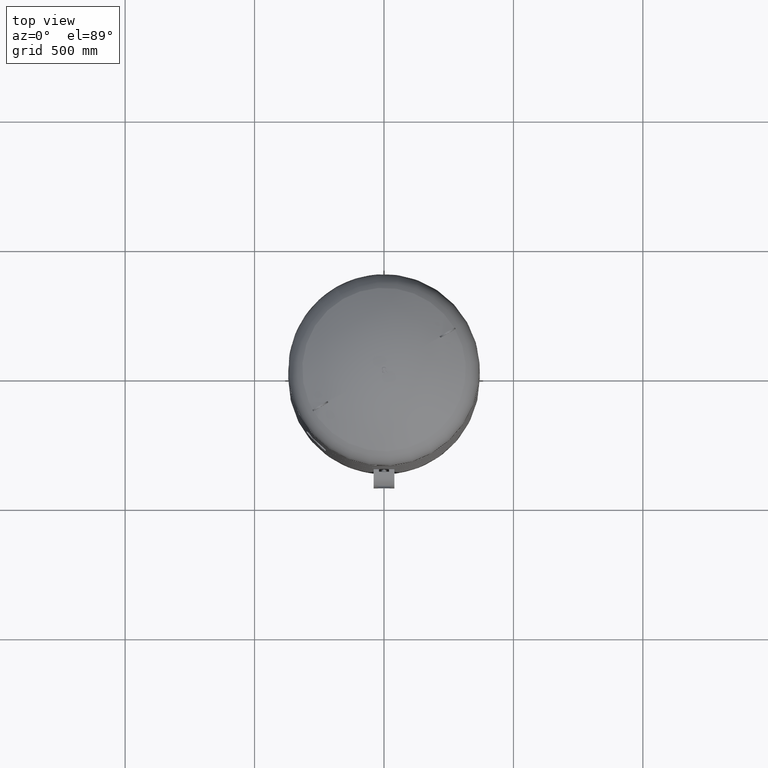
[diagram: clean part render]
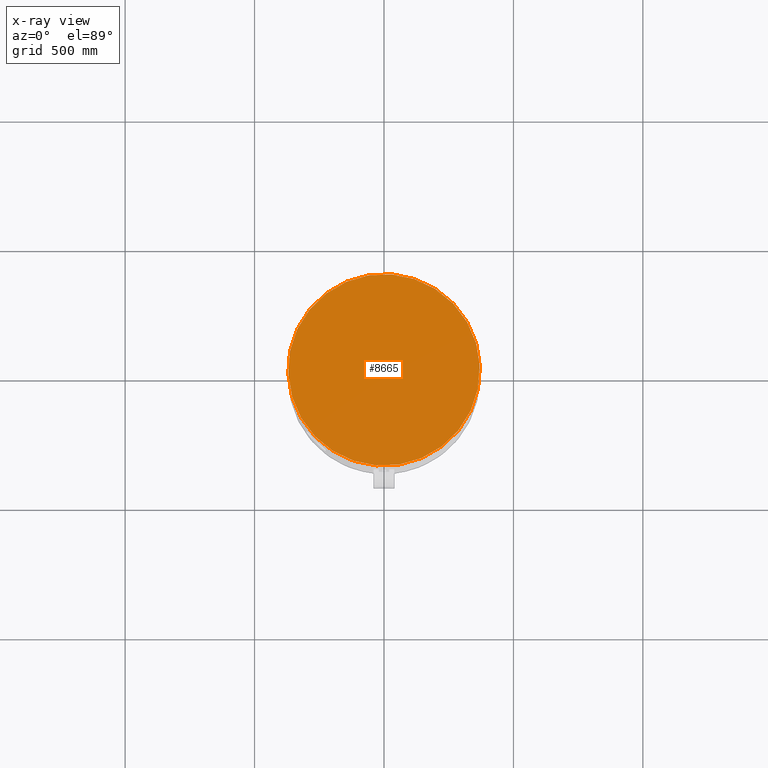
[diagram: x-ray — body ghosted, one internal face saturated and labeled with its STEP entity id]
A machine part, top view, then the same camera in x-ray: the body is ghosted and one INTERNAL B-rep face — a face not visible from any outside direction — is saturated and labeled: STEP entity #8665.
In plain terms, the highlighted planar face has unit normal (0, 0, -1).
Its self-contained STEP definition (entity closure, byte-faithful):
#7933=CARTESIAN_POINT('',(320.429399400242350,184.999999999999970,2384.0));
#7934=VERTEX_POINT('',#7933);
#7943=CARTESIAN_POINT('',(-320.429399400242350,-184.999999999999970,2384.0));
#7944=VERTEX_POINT('',#7943);
#7945=CARTESIAN_POINT('',(-2.685504E-015,-4.164022E-014,2384.0));
#7946=DIRECTION('',(-1.060575E-016,-6.123234E-017,-1.000000000000000));
#7947=DIRECTION('',(0.866025403784439,0.500000000000000,-1.224647E-016));
#7948=AXIS2_PLACEMENT_3D('',#7945,#7946,#7947);
#7949=CIRCLE('',#7948,370.0);
#7950=EDGE_CURVE('',#7944,#7934,#7949,.T.);
#8646=CARTESIAN_POINT('',(-2.685504E-015,-4.164022E-014,2384.0));
#8647=DIRECTION('',(-1.060575E-016,-6.123234E-017,-1.000000000000000));
#8648=DIRECTION('',(0.866025403784439,0.500000000000000,-1.224647E-016));
#8649=AXIS2_PLACEMENT_3D('',#8646,#8647,#8648);
#8650=CIRCLE('',#8649,370.0);
#8651=EDGE_CURVE('',#7934,#7944,#8650,.T.);
#8656=CARTESIAN_POINT('',(160.214699700121200,92.499999999999957,2384.0));
#8657=DIRECTION('',(0.0,0.0,-1.0));
#8658=DIRECTION('',(0.500000000000000,-0.866025403784439,0.0));
#8659=AXIS2_PLACEMENT_3D('',#8656,#8657,#8658);
#8660=PLANE('',#8659);
#8661=ORIENTED_EDGE('',*,*,#8651,.T.);
#8662=ORIENTED_EDGE('',*,*,#7950,.T.);
#8663=EDGE_LOOP('',(#8661,#8662));
#8664=FACE_OUTER_BOUND('',#8663,.T.);
#8665=ADVANCED_FACE('',(#8664),#8660,.T.);